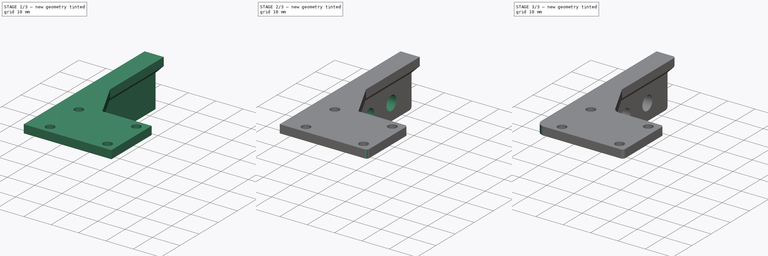
[diagram: build sequence overview — one tinted view per stage of 3, left to right]
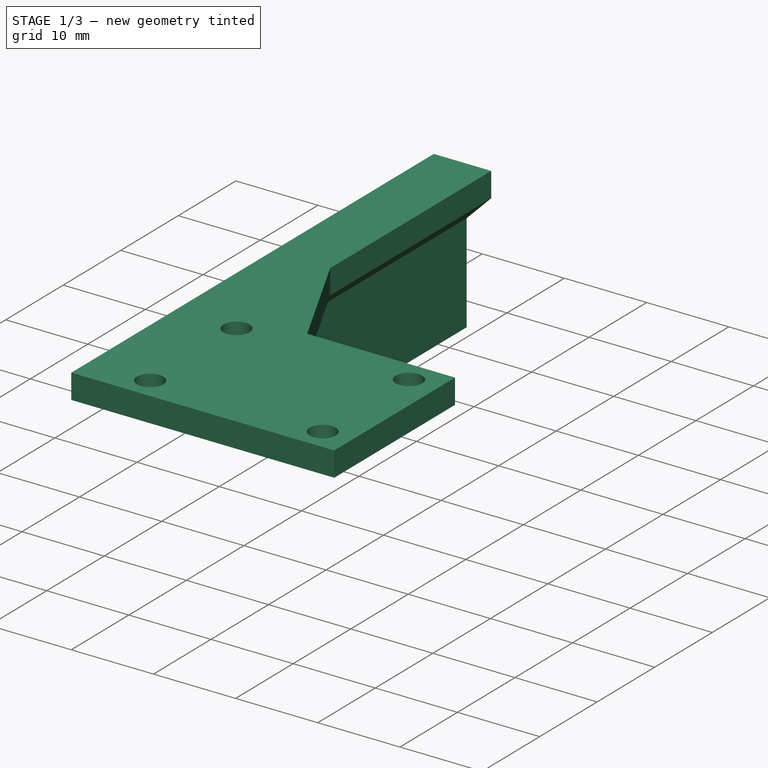
[diagram: stage 1 of 3 — iso view after this stage's code; geometry added in this stage tinted green]
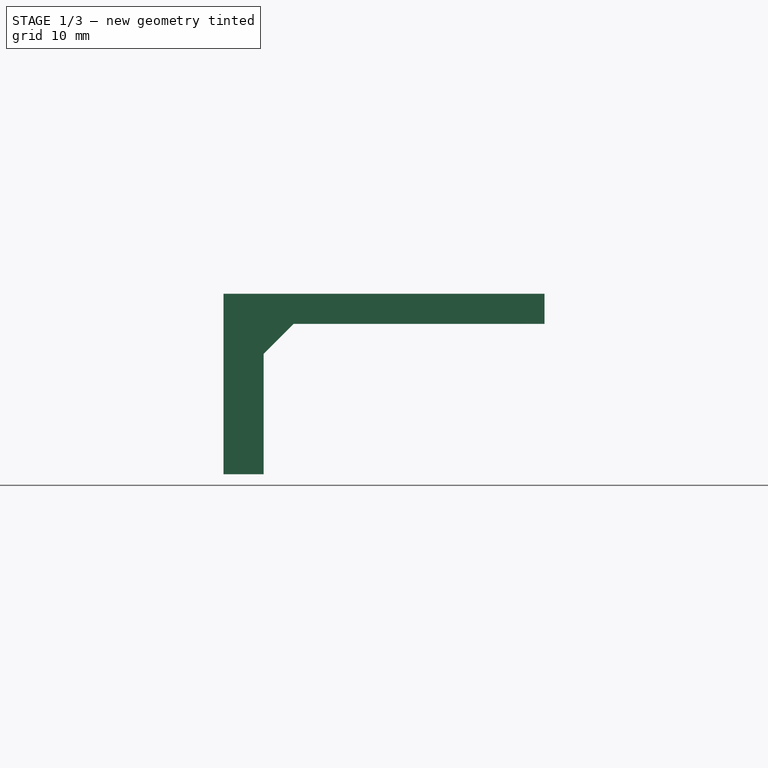
[diagram: stage 1 of 3 — front view after this stage's code; geometry added in this stage tinted green]
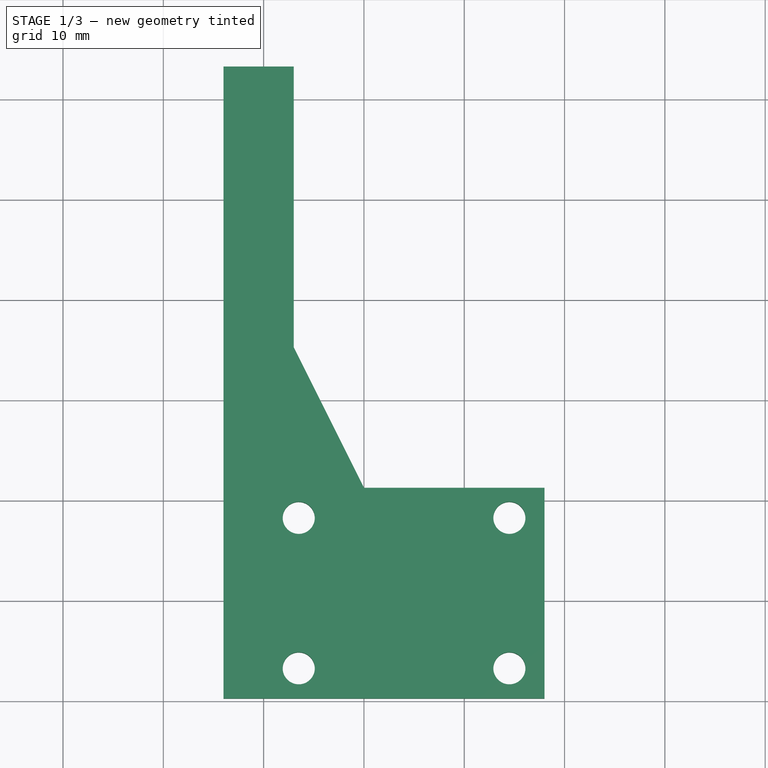
[diagram: stage 1 of 3 — top view after this stage's code; geometry added in this stage tinted green]
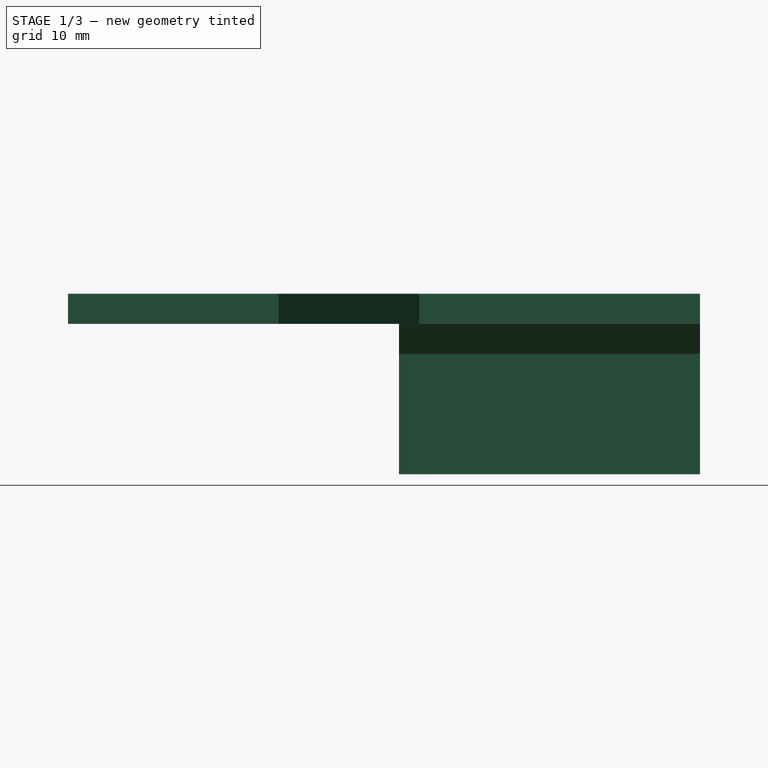
[diagram: stage 1 of 3 — right view after this stage's code; geometry added in this stage tinted green]
FCSTD DOCUMENT  (FreeCAD 0.19R24276 (Git))
Label: Clamp_holder_part3
License: All rights reserved
LicenseURL: http://en.wikipedia.org/wiki/All_rights_reserved
objects: Sketcher::SketchObject×4, PartDesign::Fillet×4, PartDesign::Pad×3, PartDesign::Pocket×1, PartDesign::Body×1
note: 21 computed .brp shape members not serialized (recipe doc carries the construction recipe); baked Part::Feature solids carry a one-line shape summary decoded from their .brp

FEATURE [Sketcher::SketchObject] Sketch  label="Sketch_21x28"
  FullyConstrained = true
  MapMode = 5
  Support = -> [XY_Plane]
  sketch-geometry (24):
    g0: LineSegment StartX=0 StartY=0 StartZ=0 EndX=28 EndY=0 EndZ=0
    g1: LineSegment StartX=28 StartY=0 StartZ=0 EndX=28 EndY=21 EndZ=0
    g2: LineSegment StartX=28 StartY=21 StartZ=0 EndX=0 EndY=21 EndZ=0
    g3: LineSegment StartX=0 StartY=21 StartZ=0 EndX=0 EndY=0 EndZ=0
    g4: LineSegment StartX=0 StartY=0 StartZ=0 EndX=-4 EndY=0 EndZ=0
    g5: LineSegment StartX=-4 StartY=0 StartZ=0 EndX=-4 EndY=63 EndZ=0
    g6: LineSegment StartX=-4 StartY=63 StartZ=0 EndX=0 EndY=63 EndZ=0
    g7: LineSegment StartX=0 StartY=63 StartZ=0 EndX=0 EndY=0 EndZ=0
    g8: Circle CenterX=3.5 CenterY=3 CenterZ=0 NormalX=0 NormalY=0 NormalZ=1 AngleXU=0 Radius=1.6
    g9: Circle CenterX=3.5 CenterY=18 CenterZ=0 NormalX=0 NormalY=0 NormalZ=1 AngleXU=0 Radius=1.6
    g10: Circle CenterX=24.5 CenterY=18 CenterZ=0 NormalX=0 NormalY=0 NormalZ=1 AngleXU=0 Radius=1.6
    g11: Circle CenterX=24.5 CenterY=3 CenterZ=0 NormalX=0 NormalY=0 NormalZ=1 AngleXU=0 Radius=1.6
    g12: LineSegment StartX=14 StartY=0 StartZ=0 EndX=14 EndY=3 EndZ=0
    g13: LineSegment StartX=28 StartY=0 StartZ=0 EndX=-4 EndY=0 EndZ=0
    g14: LineSegment StartX=-4 StartY=0 StartZ=0 EndX=-4 EndY=63 EndZ=0
    g15: LineSegment StartX=0 StartY=21 StartZ=0 EndX=0 EndY=63 EndZ=0
    g16: LineSegment StartX=0 StartY=41 StartZ=0 EndX=10 EndY=21 EndZ=0
    g17: LineSegment StartX=0 StartY=63 StartZ=0 EndX=0 EndY=41 EndZ=0
    g18: LineSegment StartX=10 StartY=21 StartZ=0 EndX=28 EndY=21 EndZ=0
    g19: LineSegment StartX=3 StartY=35 StartZ=0 EndX=3 EndY=63 EndZ=0
    g20: LineSegment StartX=0 StartY=63 StartZ=0 EndX=3 EndY=63 EndZ=0
    g21: LineSegment StartX=-4 StartY=63 StartZ=0 EndX=3 EndY=63 EndZ=0
    g22: LineSegment StartX=3 StartY=63 StartZ=0 EndX=3 EndY=35 EndZ=0
    g23: LineSegment StartX=10 StartY=21 StartZ=0 EndX=3 EndY=35 EndZ=0
  constraints (63):
    c: Coincident(g0,g1)
    c: Coincident(g1,g2)
    c: Coincident(g2,g3)
    c: Coincident(g3,g0)
    c: Horizontal(g0)
    c: Horizontal(g2)
    c: Vertical(g1)
    c: Vertical(g3)
    c: Coincident(g0,g-1)
    c: DistanceY(g3,g3) = 21
    c: DistanceX(g0,g0) = 28
    c: Coincident(g4,g5)
    c: Coincident(g5,g6)
    c: Coincident(g6,g7)
    c: Coincident(g7,g4)
    c: Horizontal(g4)
    c: Horizontal(g6)
    c: Vertical(g5)
    c: Vertical(g7)
    c: Coincident(g4,g0)
    c: Diameter(g8) = 3.2
    c: Equal(g8,g11)
    c: Equal(g8,g10)
    c: Equal(g8,g9)
    c: Horizontal(g8,g11)
    c: Horizontal(g9,g10)
    c: Vertical(g9,g8)
    c: Vertical(g10,g11)
    c: DistanceX(g9,g10) = 21
    c: PointOnObject(g12,g0)
    c: Vertical(g12)
    c: DistanceX(g0,g12) = 14
    c: Symmetric(g8,g11,g12)
    c: DistanceY(g0,g8) = 3
    c: DistanceY(g0,g9) = 18
    c: DistanceX(g6,g6) = 4
    c: DistanceY(g9,g5) = 45
    c: Coincident(g13,g4)
    c: Coincident(g14,g13)
    c: Coincident(g14,g5)
    c: Coincident(g15,g2)
    c: Coincident(g15,g6)
    c: Coincident(g13,g1)
    c: PointOnObject(g16,g2)
    c: PointOnObject(g16,g7)
    c: DistanceX(g2,g16) = 10
    c: DistanceY(g2,g16) = 20
    c: Coincident(g17,g6)
    c: Coincident(g18,g16)
    c: Coincident(g18,g1)
    c: Coincident(g17,g16)
    c: Vertical(g19)
    c: Coincident(g20,g6)
    c: Horizontal(g20)
    c: PointOnObject(g19,g16)
    c: Coincident(g19,g20)
    c: DistanceX(g20,g20) = 3
    c: Coincident(g21,g14)
    c: Coincident(g22,g19)
    c: Coincident(g23,g18)
    c: Coincident(g21,g22)
    c: Coincident(g22,g19)
    c: Coincident(g23,g22)
FEATURE [PartDesign::Pad] Pad
  Direction = (1,1,1)
  Length = 3
  Length2 = 100
  Profile = -> Sketch
  Type = 0
FEATURE [Sketcher::SketchObject] Sketch002  label="Sketch002_30x4"
  FullyConstrained = true
  MapMode = 5
  Placement = pos=(0,0,0) rot=(1,0,0;3.14159rad)
  Support = -> [Pad]
  sketch-geometry (4):
    g0: LineSegment StartX=0 StartY=-63 StartZ=0 EndX=-4 EndY=-63 EndZ=0
    g1: LineSegment StartX=-4 StartY=-63 StartZ=0 EndX=-4 EndY=-33 EndZ=0
    g2: LineSegment StartX=-4 StartY=-33 StartZ=0 EndX=0 EndY=-33 EndZ=0
    g3: LineSegment StartX=0 StartY=-33 StartZ=0 EndX=0 EndY=-63 EndZ=0
  constraints (12):
    c: Coincident(g0,g1)
    c: Coincident(g1,g2)
    c: Coincident(g2,g3)
    c: Coincident(g3,g0)
    c: Horizontal(g0)
    c: Horizontal(g2)
    c: Vertical(g1)
    c: Vertical(g3)
    c: PointOnObject(g0,g-2)
    c: DistanceY(g0,g-1) = 63
    c: DistanceY(g3,g3) = 30
    c: DistanceX(g0,g0) = 4
FEATURE [PartDesign::Pad] Pad001  label="Pad001_h15"
  BaseFeature = -> Pad
  Direction = (1,1,1)
  Length = 15
  Length2 = 100
  Profile = -> Sketch002
  Type = 0
FEATURE [Sketcher::SketchObject] Sketch003  label="Sketch003_3x3"
  FullyConstrained = true
  MapMode = 5
  Placement = pos=(0,63,0) rot=(0,0.707107,0.707107;3.14159rad)
  Support = -> [Pad001]
  sketch-geometry (3):
    g0: LineSegment StartX=0 StartY=0 StartZ=0 EndX=-3 EndY=0 EndZ=0
    g1: LineSegment StartX=-3 StartY=0 StartZ=0 EndX=0 EndY=-3 EndZ=0
    g2: LineSegment StartX=0 StartY=0 StartZ=0 EndX=0 EndY=-3 EndZ=0
  constraints (8):
    c: Coincident(g0,g-1)
    c: PointOnObject(g0,g-1)
    c: Coincident(g1,g0)
    c: PointOnObject(g1,g-2)
    c: Coincident(g2,g0)
    c: Coincident(g2,g1)
    c: DistanceX(g0,g0) = 3
    c: DistanceY(g2,g2) = 3
FEATURE [PartDesign::Pad] Pad002  label="Pad002_h30"
  BaseFeature = -> Pad001
  Direction = (1,1,1)
  Length = 30
  Length2 = 100
  Profile = -> Sketch003
  Reversed = true
  Type = 0
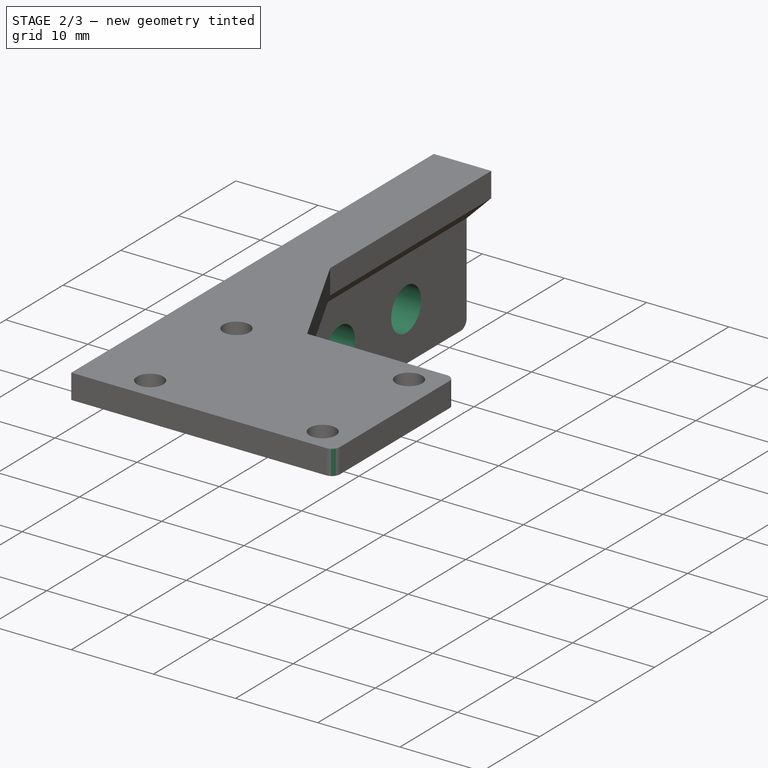
[diagram: stage 2 of 3 — iso view after this stage's code; geometry added in this stage tinted green]
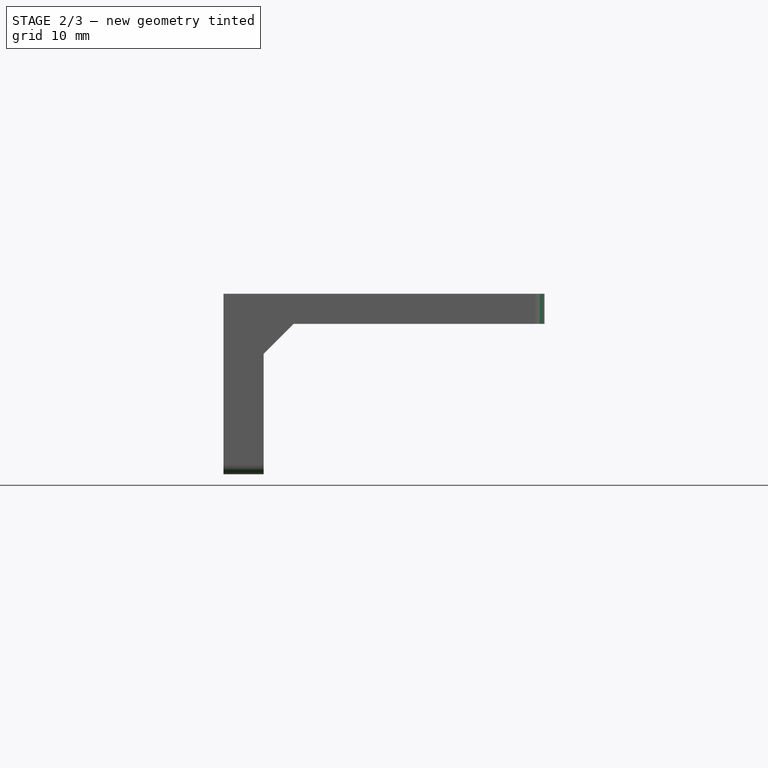
[diagram: stage 2 of 3 — front view after this stage's code; geometry added in this stage tinted green]
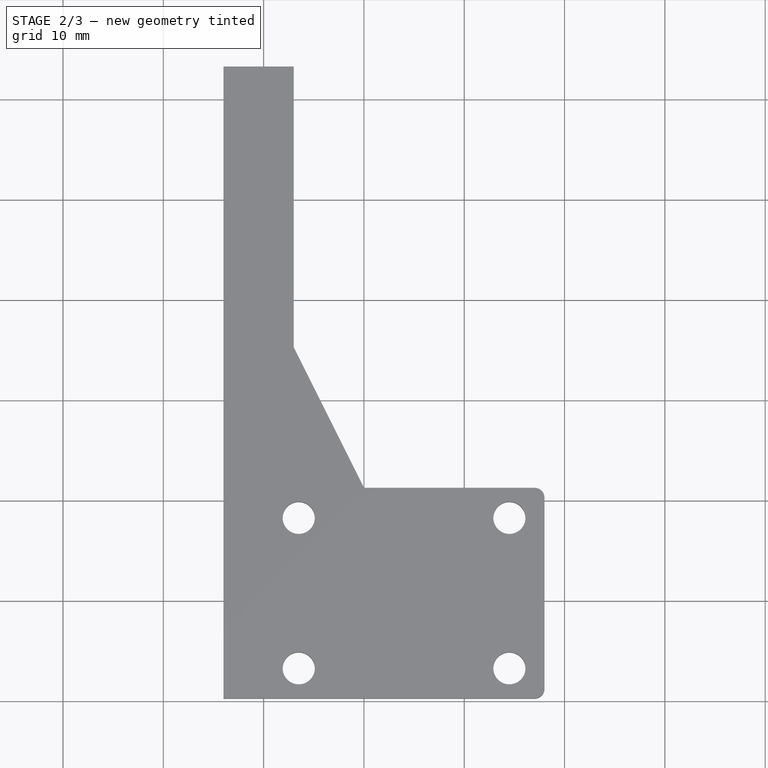
[diagram: stage 2 of 3 — top view after this stage's code; geometry added in this stage tinted green]
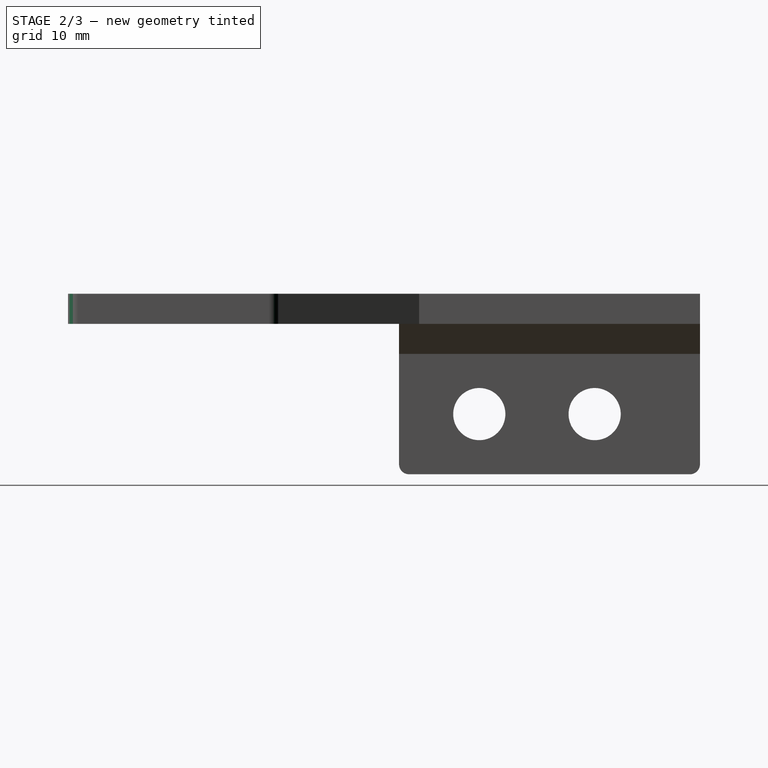
[diagram: stage 2 of 3 — right view after this stage's code; geometry added in this stage tinted green]
FEATURE [Sketcher::SketchObject] Sketch004
  FullyConstrained = true
  MapMode = 5
  Placement = pos=(-4,0,0) rot=(0.57735,-0.57735,-0.57735;2.0944rad)
  Support = -> [Pad002]
  sketch-geometry (3):
    g0: Circle CenterX=-52.5 CenterY=-9 CenterZ=0 NormalX=0 NormalY=0 NormalZ=1 AngleXU=0 Radius=2.6
    g1: Circle CenterX=-41 CenterY=-9 CenterZ=0 NormalX=0 NormalY=0 NormalZ=1 AngleXU=0 Radius=2.6
    g2: LineSegment StartX=-33 StartY=-15 StartZ=0 EndX=-33 EndY=-3 EndZ=0
  constraints (10):
    c: Horizontal(g0,g1)
    c: Diameter(g0) = 5.2
    c: Equal(g0,g1)
    c: DistanceX(g0,g1) = 11.5
    c: Vertical(g2)
    c: DistanceX(g2,g-1) = 33
    c: DistanceX(g1,g2) = 8
    c: DistanceY(g1,g-1) = 9
    c: DistanceY(g2,g-1) = 15
    c: DistanceY(g2,g-1) = 3
FEATURE [PartDesign::Pocket] Pocket
  BaseFeature = -> Pad002
  Length = 5
  Length2 = 100
  Profile = -> Sketch004
  Type = 1
FEATURE [PartDesign::Fillet] Fillet
  Base = -> Pocket [Edge52,Edge40,Edge5,Edge1]
  BaseFeature = -> Pocket
  Radius = 1
  SupportTransform = false
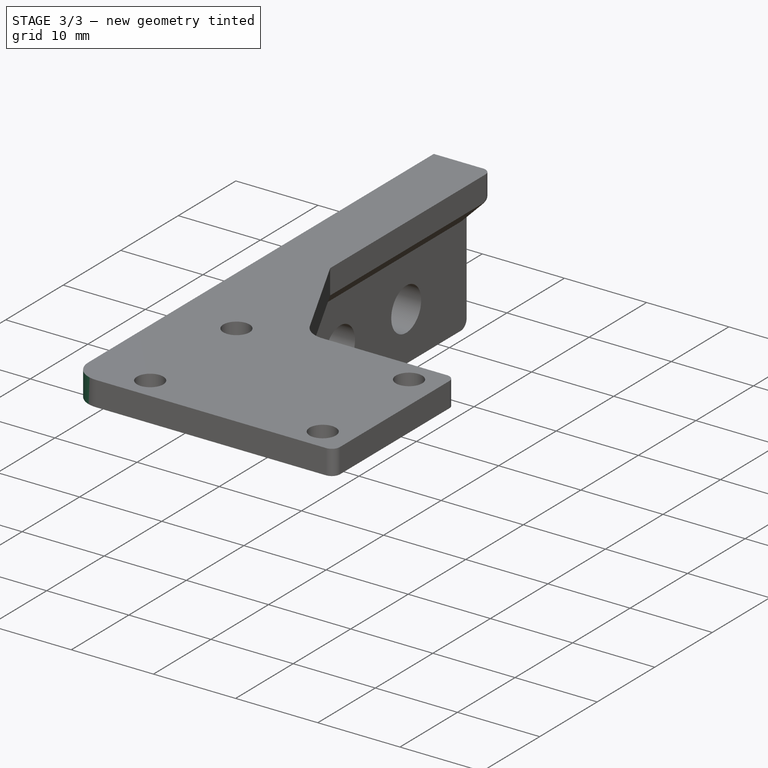
[diagram: stage 3 of 3 — iso view after this stage's code; geometry added in this stage tinted green]
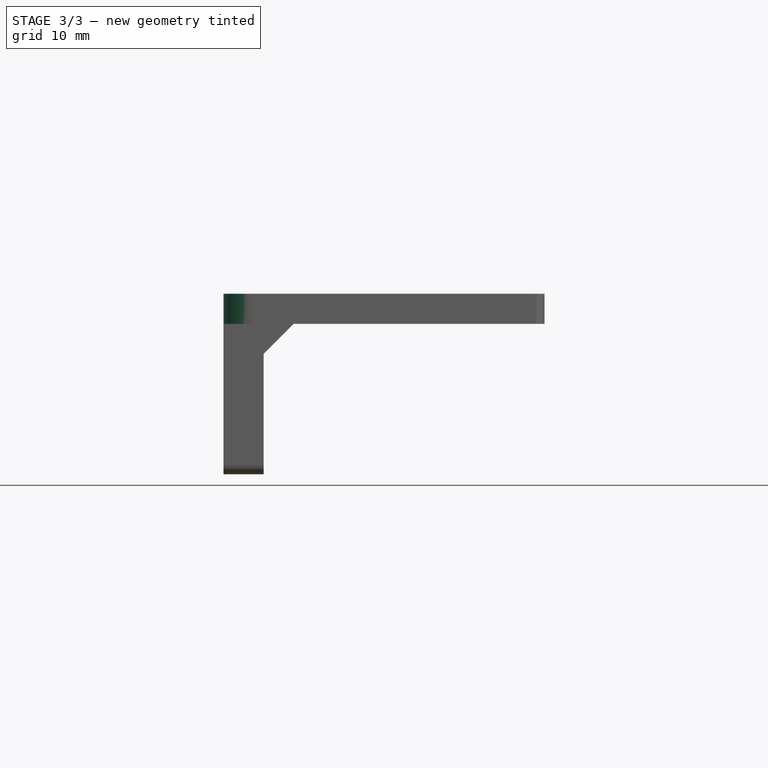
[diagram: stage 3 of 3 — front view after this stage's code; geometry added in this stage tinted green]
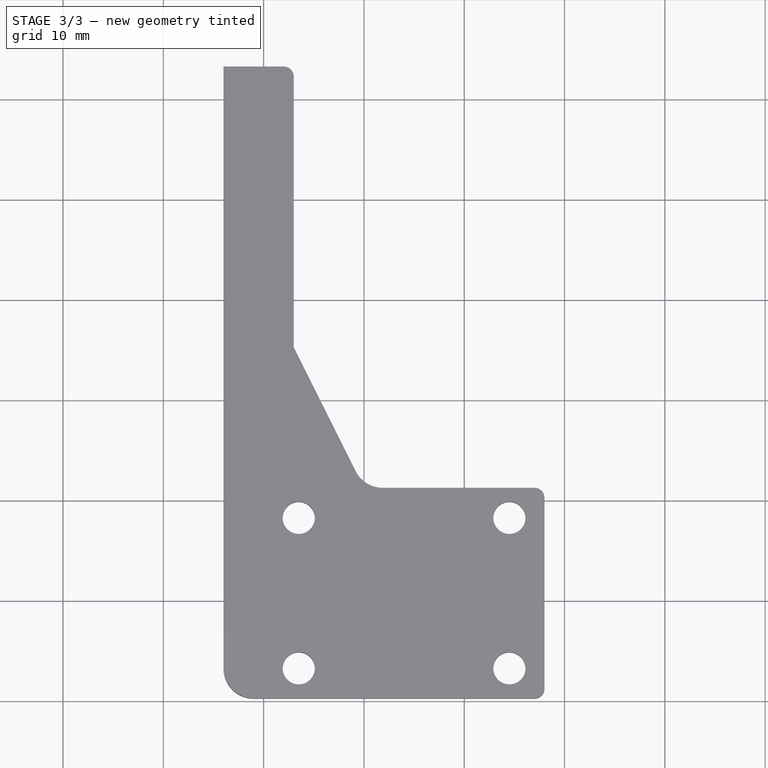
[diagram: stage 3 of 3 — top view after this stage's code; geometry added in this stage tinted green]
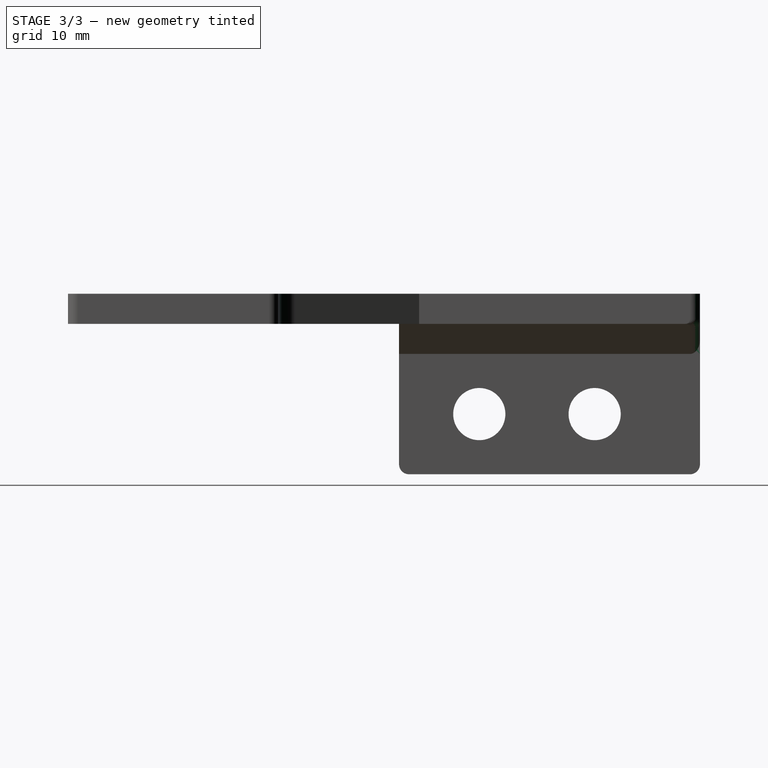
[diagram: stage 3 of 3 — right view after this stage's code; geometry added in this stage tinted green]
FEATURE [PartDesign::Fillet] Fillet001
  Base = -> Fillet [Edge49,Edge43]
  BaseFeature = -> Fillet
  Radius = 1
  SupportTransform = false
FEATURE [PartDesign::Fillet] Fillet002
  Base = -> Fillet001 [Edge30]
  BaseFeature = -> Fillet001
  Radius = 3
  SupportTransform = false
FEATURE [PartDesign::Fillet] Fillet003
  Base = -> Fillet002 [Edge36]
  BaseFeature = -> Fillet002
  Radius = 3
  SupportTransform = false
FEATURE [PartDesign::Body] Body
  Group = -> [Sketch,Pad,Sketch002,Pad001,Sketch003,Pad002,Sketch004,Pocket,Fillet,Fillet001,Fillet002,Fillet003]
  Origin = -> Origin
  Tip = -> Fillet003
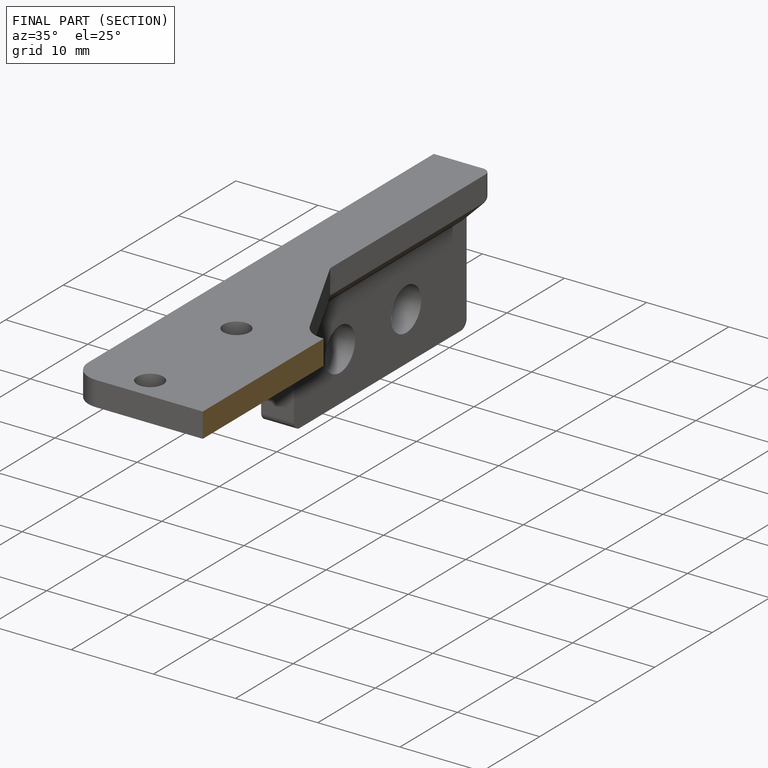
[diagram: finished part — half-section view (interior)]
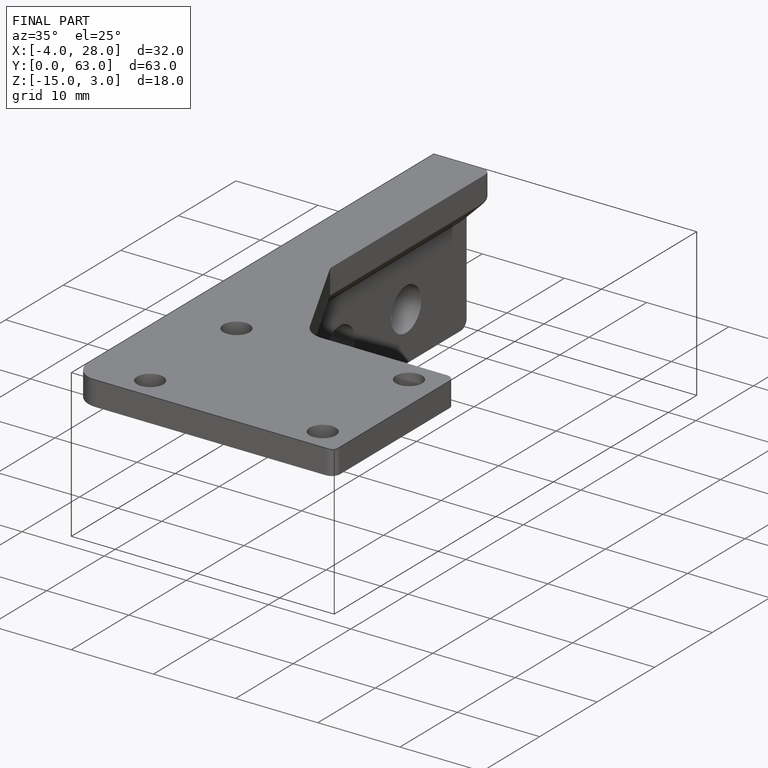
[diagram: finished part — iso view with bounding-box wireframe]
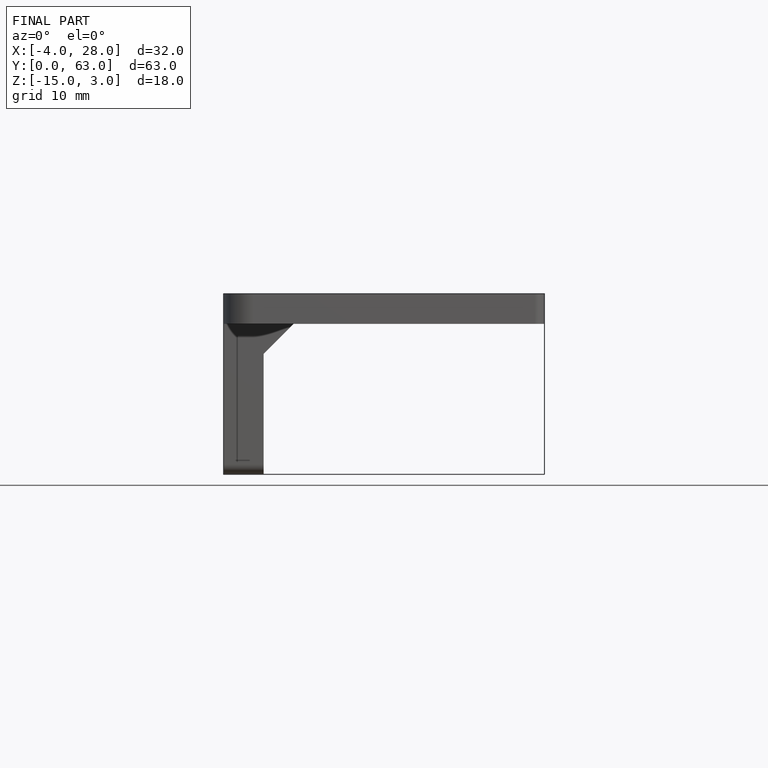
[diagram: finished part — front view with bounding-box wireframe]
